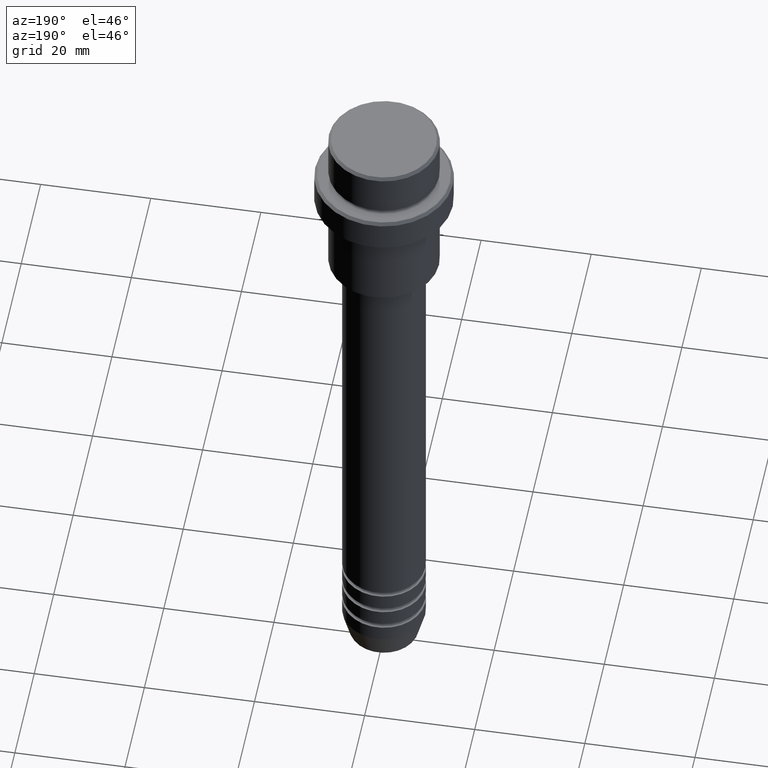
[diagram: clean part render]
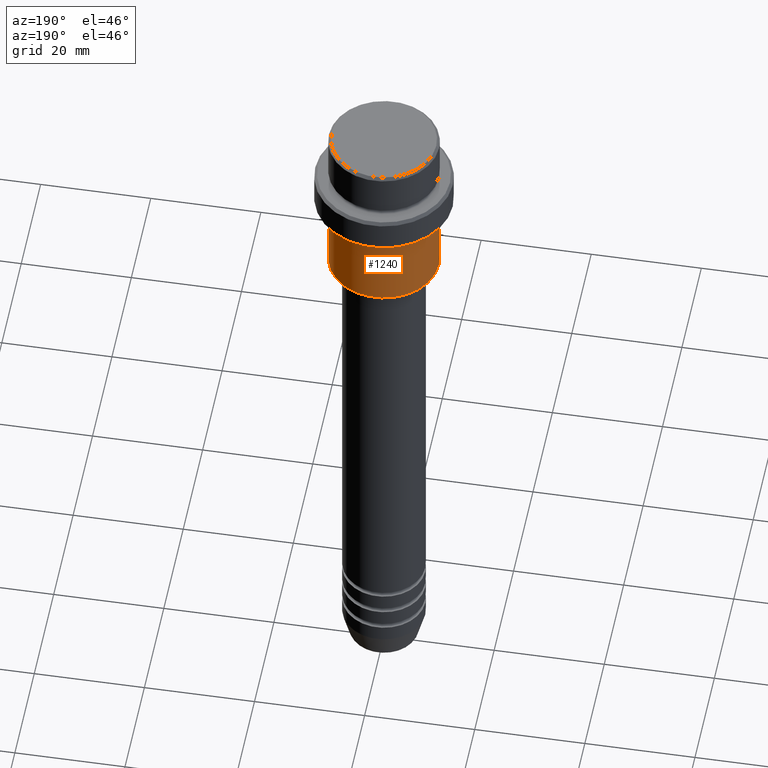
[diagram: same view with one face highlighted and labeled with its STEP entity id]
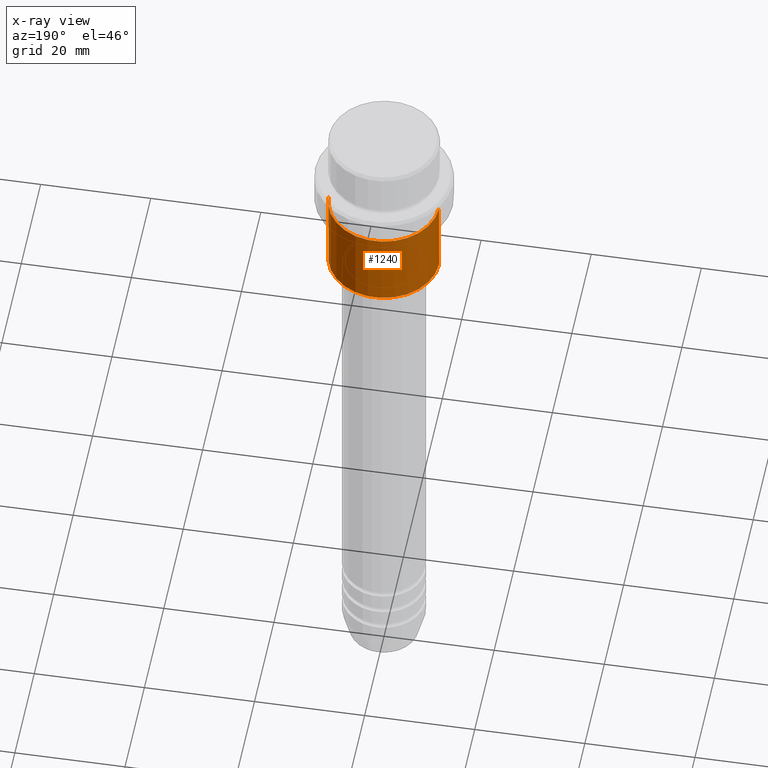
[diagram: x-ray of the same camera — body ghosted, the highlighted face saturated]
A machine part, auxiliary view. The second image highlights one B-rep face of the part: STEP entity #1240.
The next image is the same camera in x-ray: the body ghosted, the highlighted face saturated — about 0% of this face is hidden behind the body in this view.
In plain terms, the highlighted cylindrical surface (partial cylindrical patch) has radius 10 mm, axis along (-0, -0, 1).
Its self-contained STEP definition (entity closure, byte-faithful):
#47 = DIRECTION ( 'NONE',  ( -0.000000000000000000, -0.000000000000000000, 1.000000000000000000 ) ) ;
#90 = ORIENTED_EDGE ( 'NONE', *, *, #1029, .F. ) ;
#125 = DIRECTION ( 'NONE',  ( 1.000000000000000000, 0.000000000000000000, 0.000000000000000000 ) ) ;
#144 = DIRECTION ( 'NONE',  ( 1.000000000000000000, 0.000000000000000000, 0.000000000000000000 ) ) ;
#173 = EDGE_CURVE ( 'NONE', #922, #312, #384, .T. ) ;
#176 = VERTEX_POINT ( 'NONE', #887 ) ;
#203 = DIRECTION ( 'NONE',  ( -1.000000000000000000, 0.000000000000000000, 0.000000000000000000 ) ) ;
#213 = VERTEX_POINT ( 'NONE', #918 ) ;
#312 = VERTEX_POINT ( 'NONE', #675 ) ;
#384 = CIRCLE ( 'NONE', #1234, 10.00000000000000000 ) ;
#420 = CARTESIAN_POINT ( 'NONE',  ( 10.00000000000000000, 0.000000000000000000, 0.000000000000000000 ) ) ;
#429 = DIRECTION ( 'NONE',  ( -0.000000000000000000, -0.000000000000000000, 1.000000000000000000 ) ) ;
#462 = DIRECTION ( 'NONE',  ( -0.000000000000000000, -0.000000000000000000, 1.000000000000000000 ) ) ;
#512 = CARTESIAN_POINT ( 'NONE',  ( 10.00000000000000000, 0.000000000000000000, -30.49999999999996803 ) ) ;
#521 = ORIENTED_EDGE ( 'NONE', *, *, #1139, .F. ) ;
#558 = AXIS2_PLACEMENT_3D ( 'NONE', #684, #462, #125 ) ;
#584 = EDGE_CURVE ( 'NONE', #312, #213, #1358, .T. ) ;
#609 = CARTESIAN_POINT ( 'NONE',  ( -10.00000000000000000, 1.224646799147353256E-15, 0.000000000000000000 ) ) ;
#675 = CARTESIAN_POINT ( 'NONE',  ( -10.00000000000000000, 1.224646799147353256E-15, -30.49999999999996803 ) ) ;
#684 = CARTESIAN_POINT ( 'NONE',  ( 0.000000000000000000, 0.000000000000000000, -16.00000000000000000 ) ) ;
#721 = VECTOR ( 'NONE', #429, 1000.000000000000000 ) ;
#820 = ORIENTED_EDGE ( 'NONE', *, *, #173, .T. ) ;
#840 = CYLINDRICAL_SURFACE ( 'NONE', #1134, 10.00000000000000000 ) ;
#887 = CARTESIAN_POINT ( 'NONE',  ( 10.00000000000000000, 0.000000000000000000, -16.00000000000000000 ) ) ;
#918 = CARTESIAN_POINT ( 'NONE',  ( -10.00000000000000000, 1.224646799147353256E-15, -16.00000000000000000 ) ) ;
#922 = VERTEX_POINT ( 'NONE', #512 ) ;
#943 = CARTESIAN_POINT ( 'NONE',  ( 0.000000000000000000, 0.000000000000000000, 0.000000000000000000 ) ) ;
#1029 = EDGE_CURVE ( 'NONE', #922, #176, #1401, .T. ) ;
#1050 = FACE_OUTER_BOUND ( 'NONE', #1124, .T. ) ;
#1124 = EDGE_LOOP ( 'NONE', ( #820, #1258, #521, #90 ) ) ;
#1134 = AXIS2_PLACEMENT_3D ( 'NONE', #943, #1147, #144 ) ;
#1139 = EDGE_CURVE ( 'NONE', #176, #213, #1168, .T. ) ;
#1147 = DIRECTION ( 'NONE',  ( -0.000000000000000000, -0.000000000000000000, 1.000000000000000000 ) ) ;
#1168 = CIRCLE ( 'NONE', #558, 10.00000000000000000 ) ;
#1174 = DIRECTION ( 'NONE',  ( -0.000000000000000000, -0.000000000000000000, 1.000000000000000000 ) ) ;
#1234 = AXIS2_PLACEMENT_3D ( 'NONE', #1270, #1174, #203 ) ;
#1240 = ADVANCED_FACE ( 'NONE', ( #1050 ), #840, .T. ) ;
#1258 = ORIENTED_EDGE ( 'NONE', *, *, #584, .T. ) ;
#1270 = CARTESIAN_POINT ( 'NONE',  ( 0.000000000000000000, 0.000000000000000000, -30.49999999999996803 ) ) ;
#1345 = VECTOR ( 'NONE', #47, 1000.000000000000000 ) ;
#1358 = LINE ( 'NONE', #609, #1345 ) ;
#1401 = LINE ( 'NONE', #420, #721 ) ;